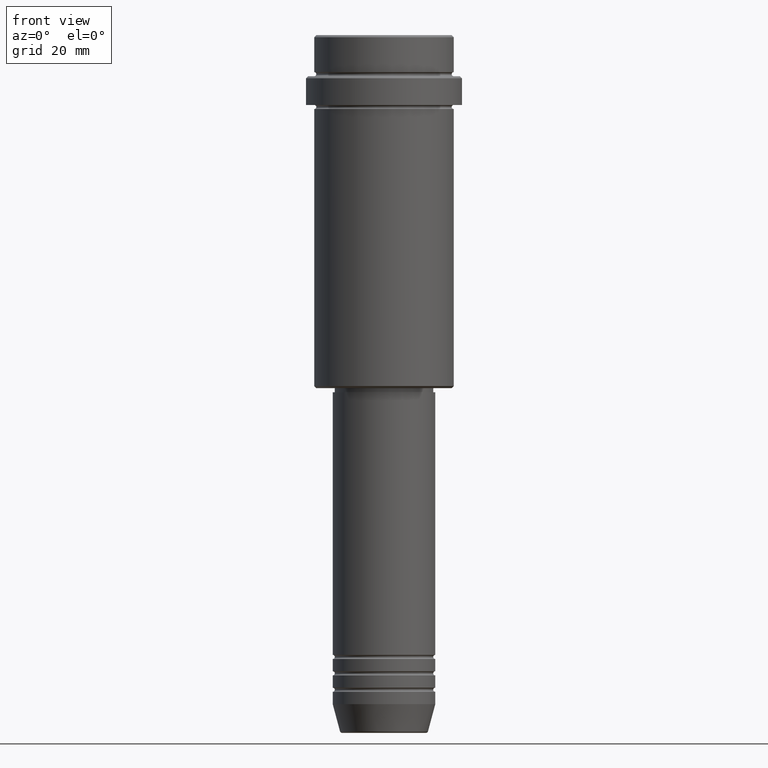
[diagram: clean part render]
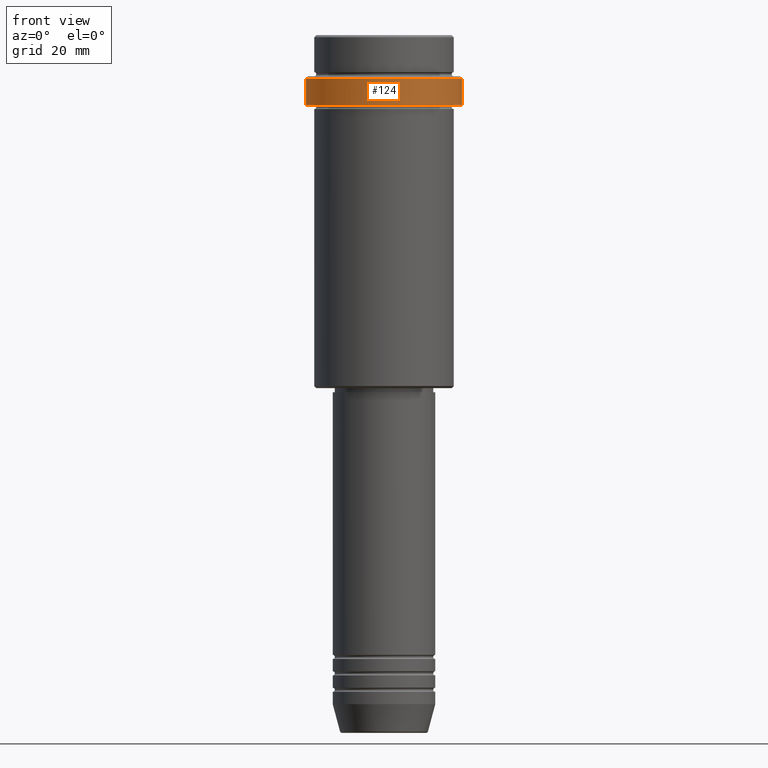
[diagram: same view with one face highlighted and labeled with its STEP entity id]
A machine part, front view. The second image highlights one B-rep face of the part: STEP entity #124.
In plain terms, the highlighted cylindrical surface (partial cylindrical patch) has radius 19 mm, axis along (-0, -0, 1).
Its self-contained STEP definition (entity closure, byte-faithful):
#7 = EDGE_LOOP ( 'NONE', ( #121, #1037, #24, #1297 ) ) ;
#24 = ORIENTED_EDGE ( 'NONE', *, *, #110, .T. ) ;
#30 = CARTESIAN_POINT ( 'NONE',  ( 0.000000000000000000, 0.000000000000000000, 0.000000000000000000 ) ) ;
#58 = CIRCLE ( 'NONE', #1065, 18.99999999999997868 ) ;
#110 = EDGE_CURVE ( 'NONE', #143, #1109, #1300, .T. ) ;
#121 = ORIENTED_EDGE ( 'NONE', *, *, #1212, .F. ) ;
#124 = ADVANCED_FACE ( 'NONE', ( #1197 ), #994, .T. ) ;
#143 = VERTEX_POINT ( 'NONE', #1113 ) ;
#233 = DIRECTION ( 'NONE',  ( -0.000000000000000000, -0.000000000000000000, 1.000000000000000000 ) ) ;
#305 = DIRECTION ( 'NONE',  ( -0.000000000000000000, -0.000000000000000000, 1.000000000000000000 ) ) ;
#310 = AXIS2_PLACEMENT_3D ( 'NONE', #798, #233, #345 ) ;
#312 = EDGE_CURVE ( 'NONE', #1393, #143, #1270, .T. ) ;
#315 = CARTESIAN_POINT ( 'NONE',  ( 18.99999999999997868, 0.000000000000000000, 0.000000000000000000 ) ) ;
#345 = DIRECTION ( 'NONE',  ( 1.000000000000000000, 0.000000000000000000, 0.000000000000000000 ) ) ;
#374 = LINE ( 'NONE', #945, #476 ) ;
#476 = VECTOR ( 'NONE', #831, 1000.000000000000000 ) ;
#571 = CARTESIAN_POINT ( 'NONE',  ( 0.000000000000000000, 0.000000000000000000, -10.49999999999996092 ) ) ;
#787 = VERTEX_POINT ( 'NONE', #922 ) ;
#794 = CARTESIAN_POINT ( 'NONE',  ( 18.99999999999997868, 0.000000000000000000, -10.49999999999996092 ) ) ;
#798 = CARTESIAN_POINT ( 'NONE',  ( 0.000000000000000000, 0.000000000000000000, -17.00000000000000000 ) ) ;
#831 = DIRECTION ( 'NONE',  ( -0.000000000000000000, -0.000000000000000000, 1.000000000000000000 ) ) ;
#922 = CARTESIAN_POINT ( 'NONE',  ( -18.99999999999997868, 2.326828918379968604E-15, -10.49999999999996092 ) ) ;
#945 = CARTESIAN_POINT ( 'NONE',  ( -18.99999999999997868, 2.326828918379968604E-15, 0.000000000000000000 ) ) ;
#994 = CYLINDRICAL_SURFACE ( 'NONE', #1360, 18.99999999999997868 ) ;
#999 = DIRECTION ( 'NONE',  ( 1.000000000000000000, 0.000000000000000000, 0.000000000000000000 ) ) ;
#1016 = DIRECTION ( 'NONE',  ( 0.000000000000000000, 0.000000000000000000, -1.000000000000000000 ) ) ;
#1037 = ORIENTED_EDGE ( 'NONE', *, *, #312, .T. ) ;
#1065 = AXIS2_PLACEMENT_3D ( 'NONE', #571, #1016, #999 ) ;
#1092 = DIRECTION ( 'NONE',  ( -0.000000000000000000, -0.000000000000000000, 1.000000000000000000 ) ) ;
#1109 = VERTEX_POINT ( 'NONE', #794 ) ;
#1113 = CARTESIAN_POINT ( 'NONE',  ( 18.99999999999997868, 0.000000000000000000, -17.00000000000000000 ) ) ;
#1126 = EDGE_CURVE ( 'NONE', #1109, #787, #58, .T. ) ;
#1183 = CARTESIAN_POINT ( 'NONE',  ( -18.99999999999997868, 2.326828918379968604E-15, -17.00000000000000000 ) ) ;
#1197 = FACE_OUTER_BOUND ( 'NONE', #7, .T. ) ;
#1212 = EDGE_CURVE ( 'NONE', #1393, #787, #374, .T. ) ;
#1270 = CIRCLE ( 'NONE', #310, 18.99999999999997868 ) ;
#1297 = ORIENTED_EDGE ( 'NONE', *, *, #1126, .T. ) ;
#1300 = LINE ( 'NONE', #315, #1402 ) ;
#1311 = DIRECTION ( 'NONE',  ( 1.000000000000000000, 0.000000000000000000, 0.000000000000000000 ) ) ;
#1360 = AXIS2_PLACEMENT_3D ( 'NONE', #30, #305, #1311 ) ;
#1393 = VERTEX_POINT ( 'NONE', #1183 ) ;
#1402 = VECTOR ( 'NONE', #1092, 1000.000000000000000 ) ;